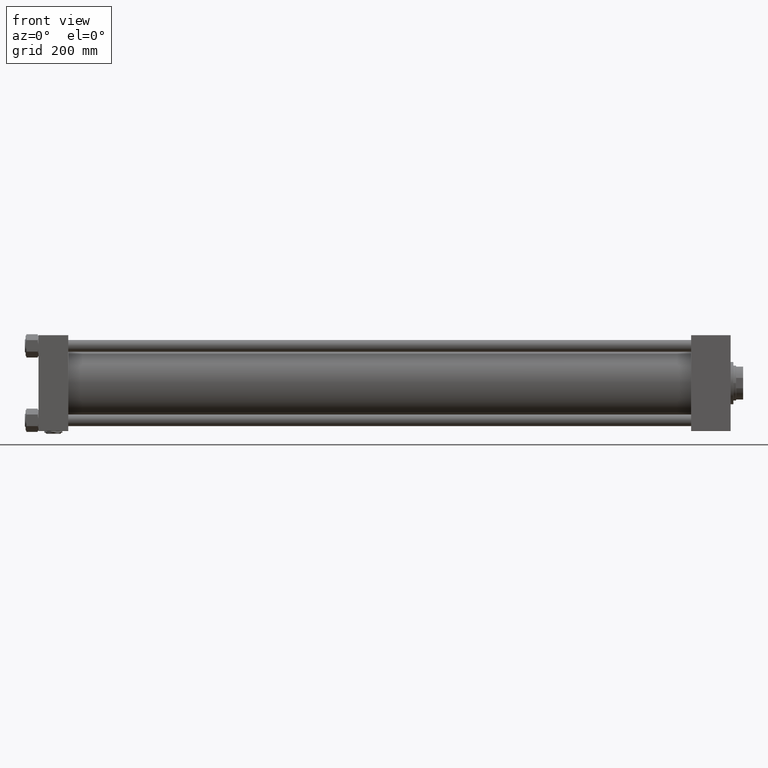
[diagram: clean part render]
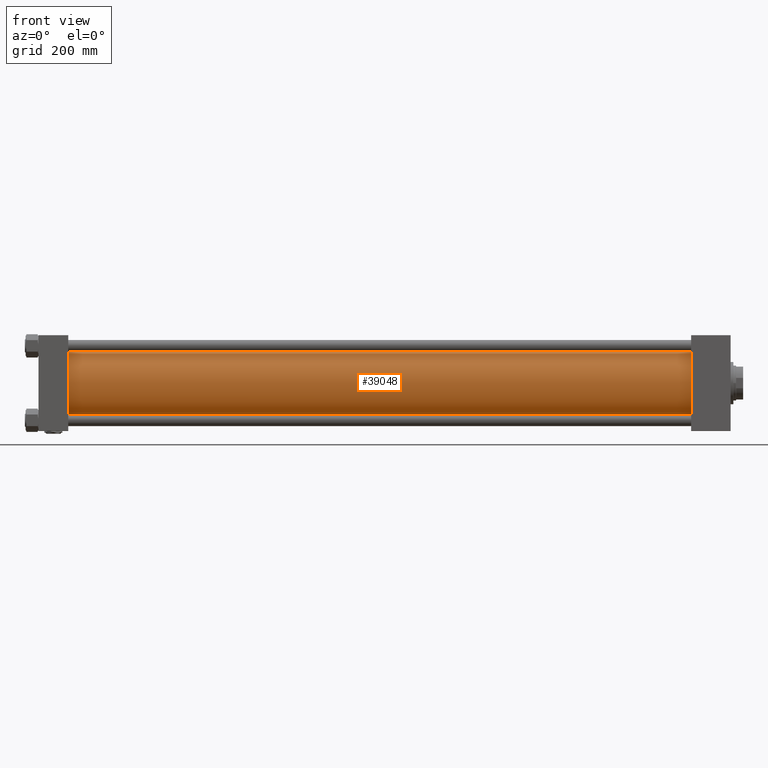
[diagram: same view with one face highlighted and labeled with its STEP entity id]
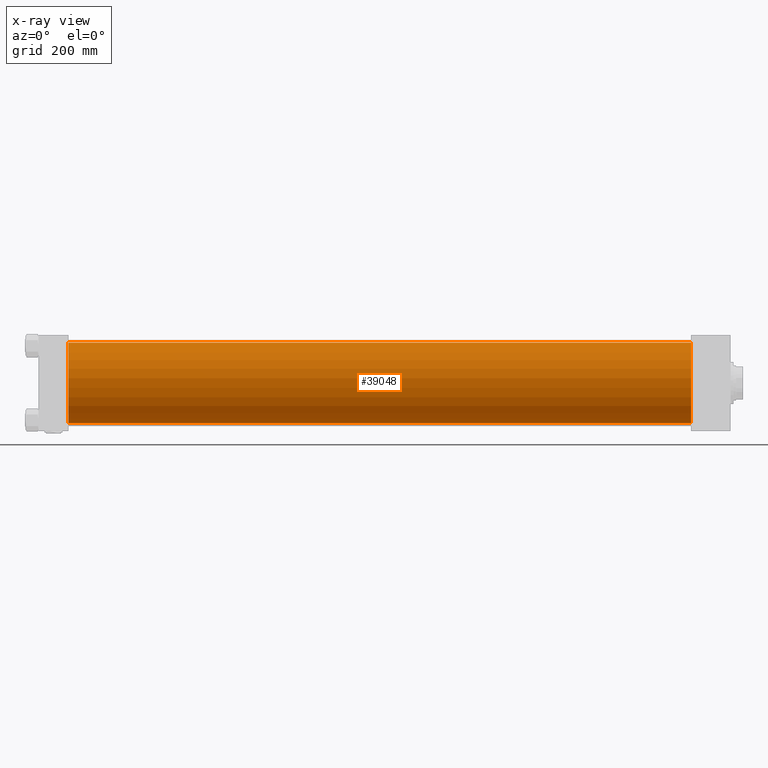
[diagram: x-ray of the same camera — body ghosted, the highlighted face saturated]
A machine part, front view. The second image highlights one B-rep face of the part: STEP entity #39048.
The next image is the same camera in x-ray: the body ghosted, the highlighted face saturated — about 0% of this face is hidden behind the body in this view.
In plain terms, the highlighted cylindrical surface (partial cylindrical patch) has radius 103 mm, axis along (-1, -0, -0).
Its self-contained STEP definition (entity closure, byte-faithful):
#267 = DIRECTION ( 'NONE',  ( -1.000000000000000000, -0.000000000000000000, -0.000000000000000000 ) ) ;
#1648 = VERTEX_POINT ( 'NONE', #32879 ) ;
#3018 = DIRECTION ( 'NONE',  ( 0.000000000000000000, 0.000000000000000000, -1.000000000000000000 ) ) ;
#3087 = EDGE_CURVE ( 'NONE', #11448, #1648, #28863, .T. ) ;
#5006 = EDGE_CURVE ( 'NONE', #38761, #1648, #26783, .T. ) ;
#5087 = AXIS2_PLACEMENT_3D ( 'NONE', #42521, #14628, #43306 ) ;
#10577 = DIRECTION ( 'NONE',  ( -1.000000000000000000, -0.000000000000000000, -0.000000000000000000 ) ) ;
#11448 = VERTEX_POINT ( 'NONE', #38872 ) ;
#12016 = ORIENTED_EDGE ( 'NONE', *, *, #28636, .F. ) ;
#12233 = CYLINDRICAL_SURFACE ( 'NONE', #37445, 103.0000000000000000 ) ;
#12300 = CARTESIAN_POINT ( 'NONE',  ( 1668.000000000000227, 1.001177681725252697E-14, -103.0000000000000000 ) ) ;
#14628 = DIRECTION ( 'NONE',  ( 1.000000000000000000, -0.000000000000000000, -0.000000000000000000 ) ) ;
#16760 = DIRECTION ( 'NONE',  ( -1.000000000000000000, -0.000000000000000000, -0.000000000000000000 ) ) ;
#16924 = ORIENTED_EDGE ( 'NONE', *, *, #3087, .T. ) ;
#18764 = VECTOR ( 'NONE', #10577, 1000.000000000000000 ) ;
#22349 = VERTEX_POINT ( 'NONE', #48788 ) ;
#23941 = CARTESIAN_POINT ( 'NONE',  ( 1668.000000000000227, -2.602085213965210642E-15, 0.000000000000000000 ) ) ;
#24199 = CARTESIAN_POINT ( 'NONE',  ( 1668.000000000000227, -2.602085213965210642E-15, 103.0000000000000000 ) ) ;
#25286 = AXIS2_PLACEMENT_3D ( 'NONE', #26658, #42875, #3018 ) ;
#25530 = ORIENTED_EDGE ( 'NONE', *, *, #46053, .T. ) ;
#26658 = CARTESIAN_POINT ( 'NONE',  ( 1668.000000000000227, -2.602085213965210642E-15, 0.000000000000000000 ) ) ;
#26783 = LINE ( 'NONE', #47496, #18764 ) ;
#27859 = CIRCLE ( 'NONE', #25286, 103.0000000000000000 ) ;
#28636 = EDGE_CURVE ( 'NONE', #22349, #38761, #27859, .T. ) ;
#28863 = CIRCLE ( 'NONE', #5087, 103.0000000000000000 ) ;
#32879 = CARTESIAN_POINT ( 'NONE',  ( 76.00000000000007105, 1.001177681725252697E-14, -103.0000000000000000 ) ) ;
#37445 = AXIS2_PLACEMENT_3D ( 'NONE', #23941, #16760, #40152 ) ;
#37659 = VECTOR ( 'NONE', #267, 1000.000000000000000 ) ;
#38288 = EDGE_LOOP ( 'NONE', ( #42473, #12016, #25530, #16924 ) ) ;
#38761 = VERTEX_POINT ( 'NONE', #12300 ) ;
#38872 = CARTESIAN_POINT ( 'NONE',  ( 76.00000000000007105, -2.602085213965210642E-15, 103.0000000000000000 ) ) ;
#39048 = ADVANCED_FACE ( 'NONE', ( #41191 ), #12233, .T. ) ;
#40152 = DIRECTION ( 'NONE',  ( 0.000000000000000000, 0.000000000000000000, 1.000000000000000000 ) ) ;
#41191 = FACE_OUTER_BOUND ( 'NONE', #38288, .T. ) ;
#42473 = ORIENTED_EDGE ( 'NONE', *, *, #5006, .F. ) ;
#42521 = CARTESIAN_POINT ( 'NONE',  ( 76.00000000000007105, -2.602085213965210642E-15, 0.000000000000000000 ) ) ;
#42875 = DIRECTION ( 'NONE',  ( 1.000000000000000000, 0.000000000000000000, 0.000000000000000000 ) ) ;
#43306 = DIRECTION ( 'NONE',  ( 0.000000000000000000, 0.000000000000000000, 1.000000000000000000 ) ) ;
#46053 = EDGE_CURVE ( 'NONE', #22349, #11448, #48126, .T. ) ;
#47496 = CARTESIAN_POINT ( 'NONE',  ( 1668.000000000000227, 1.001177681725252697E-14, -103.0000000000000000 ) ) ;
#48126 = LINE ( 'NONE', #24199, #37659 ) ;
#48788 = CARTESIAN_POINT ( 'NONE',  ( 1668.000000000000227, -2.602085213965210642E-15, 103.0000000000000000 ) ) ;